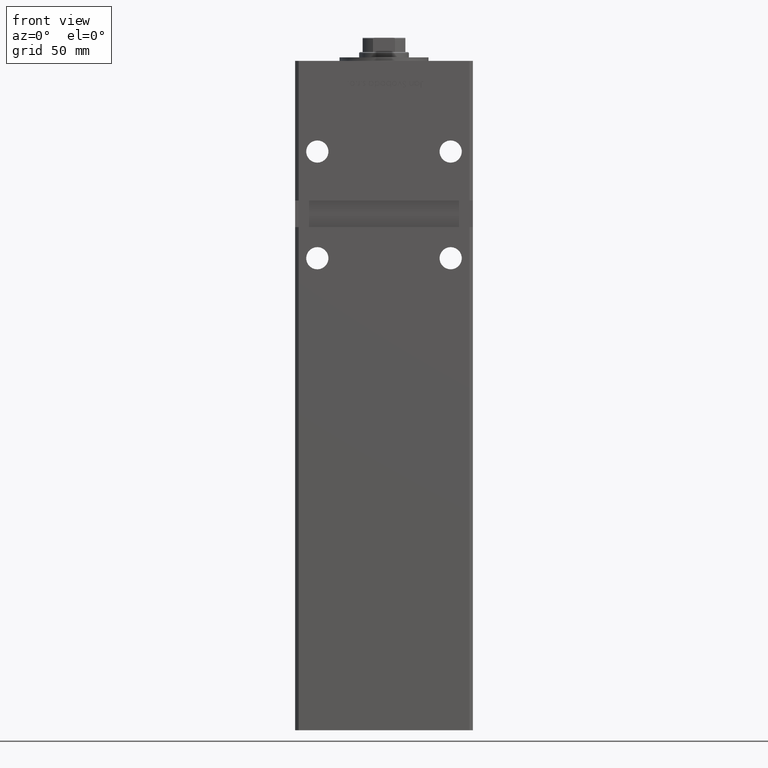
[diagram: clean part render]
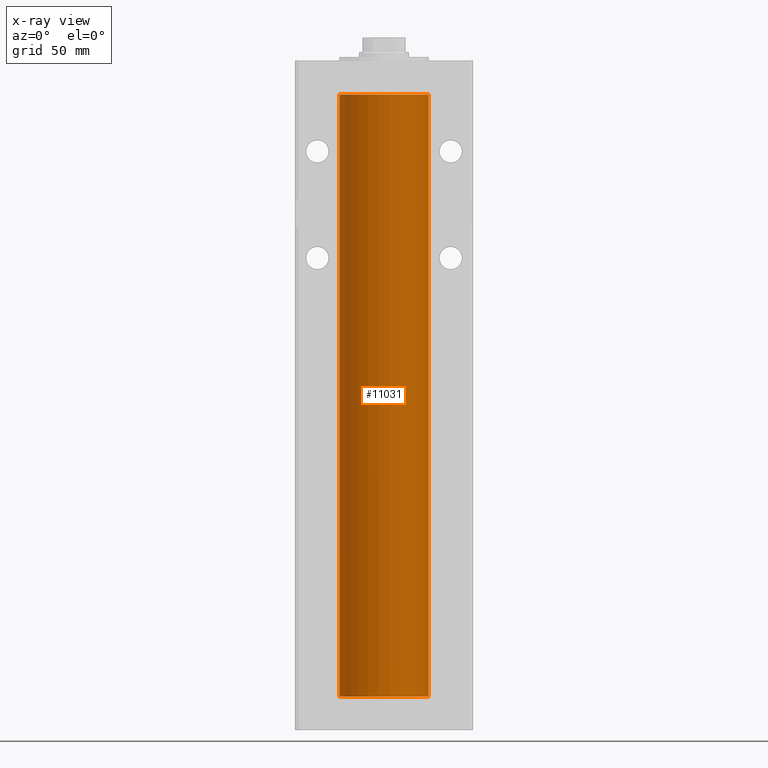
[diagram: x-ray — body ghosted, one internal face saturated and labeled with its STEP entity id]
A machine part, front view, then the same camera in x-ray: the body is ghosted and one INTERNAL B-rep face — a face not visible from any outside direction — is saturated and labeled: STEP entity #11031.
In plain terms, the highlighted cylindrical surface (partial cylindrical patch) has radius 25 mm, axis along (-0, -0, -1).
Its self-contained STEP definition (entity closure, byte-faithful):
#280 = CARTESIAN_POINT ( 'NONE',  ( 25.00000000000000000, 3.061616997868383043E-15, 0.000000000000000000 ) ) ;
#713 = FACE_OUTER_BOUND ( 'NONE', #40155, .T. ) ;
#1262 = CARTESIAN_POINT ( 'NONE',  ( 25.00000000000000000, 3.061616997868383043E-15, 338.5000000000000000 ) ) ;
#1508 = ORIENTED_EDGE ( 'NONE', *, *, #15652, .F. ) ;
#4202 = CARTESIAN_POINT ( 'NONE',  ( 25.00000000000000000, 3.061616997868383043E-15, 338.5000000000000000 ) ) ;
#7069 = DIRECTION ( 'NONE',  ( 1.000000000000000000, 0.000000000000000000, 0.000000000000000000 ) ) ;
#7525 = AXIS2_PLACEMENT_3D ( 'NONE', #45407, #41904, #45674 ) ;
#8447 = AXIS2_PLACEMENT_3D ( 'NONE', #32163, #39724, #19535 ) ;
#9331 = EDGE_CURVE ( 'NONE', #20983, #14459, #27331, .T. ) ;
#11031 = ADVANCED_FACE ( 'NONE', ( #713 ), #24952, .F. ) ;
#12558 = LINE ( 'NONE', #36774, #41678 ) ;
#14459 = VERTEX_POINT ( 'NONE', #4202 ) ;
#15652 = EDGE_CURVE ( 'NONE', #18951, #19156, #41217, .T. ) ;
#18643 = CARTESIAN_POINT ( 'NONE',  ( 0.000000000000000000, 0.000000000000000000, 0.000000000000000000 ) ) ;
#18951 = VERTEX_POINT ( 'NONE', #30704 ) ;
#19156 = VERTEX_POINT ( 'NONE', #280 ) ;
#19535 = DIRECTION ( 'NONE',  ( 1.000000000000000000, 0.000000000000000000, 0.000000000000000000 ) ) ;
#20983 = VERTEX_POINT ( 'NONE', #30982 ) ;
#24952 = CYLINDRICAL_SURFACE ( 'NONE', #7525, 25.00000000000000000 ) ;
#27331 = CIRCLE ( 'NONE', #8447, 25.00000000000000000 ) ;
#30043 = DIRECTION ( 'NONE',  ( -0.000000000000000000, -0.000000000000000000, -1.000000000000000000 ) ) ;
#30704 = CARTESIAN_POINT ( 'NONE',  ( -25.00000000000000000, 0.000000000000000000, 0.000000000000000000 ) ) ;
#30982 = CARTESIAN_POINT ( 'NONE',  ( -25.00000000000000000, 0.000000000000000000, 338.5000000000000000 ) ) ;
#32163 = CARTESIAN_POINT ( 'NONE',  ( 0.000000000000000000, 0.000000000000000000, 338.5000000000000000 ) ) ;
#35628 = EDGE_CURVE ( 'NONE', #20983, #18951, #12558, .T. ) ;
#35850 = DIRECTION ( 'NONE',  ( -0.000000000000000000, 0.000000000000000000, 1.000000000000000000 ) ) ;
#36774 = CARTESIAN_POINT ( 'NONE',  ( -25.00000000000000000, 0.000000000000000000, 338.5000000000000000 ) ) ;
#38396 = LINE ( 'NONE', #1262, #43065 ) ;
#39724 = DIRECTION ( 'NONE',  ( -0.000000000000000000, 0.000000000000000000, 1.000000000000000000 ) ) ;
#40155 = EDGE_LOOP ( 'NONE', ( #47432, #41640, #1508, #49475 ) ) ;
#41087 = DIRECTION ( 'NONE',  ( -0.000000000000000000, -0.000000000000000000, -1.000000000000000000 ) ) ;
#41217 = CIRCLE ( 'NONE', #45514, 25.00000000000000000 ) ;
#41640 = ORIENTED_EDGE ( 'NONE', *, *, #43684, .T. ) ;
#41678 = VECTOR ( 'NONE', #41087, 1000.000000000000000 ) ;
#41904 = DIRECTION ( 'NONE',  ( -0.000000000000000000, -0.000000000000000000, -1.000000000000000000 ) ) ;
#43065 = VECTOR ( 'NONE', #30043, 1000.000000000000000 ) ;
#43684 = EDGE_CURVE ( 'NONE', #14459, #19156, #38396, .T. ) ;
#45407 = CARTESIAN_POINT ( 'NONE',  ( 0.000000000000000000, 0.000000000000000000, 338.5000000000000000 ) ) ;
#45514 = AXIS2_PLACEMENT_3D ( 'NONE', #18643, #35850, #7069 ) ;
#45674 = DIRECTION ( 'NONE',  ( -1.000000000000000000, 0.000000000000000000, 0.000000000000000000 ) ) ;
#47432 = ORIENTED_EDGE ( 'NONE', *, *, #9331, .T. ) ;
#49475 = ORIENTED_EDGE ( 'NONE', *, *, #35628, .F. ) ;